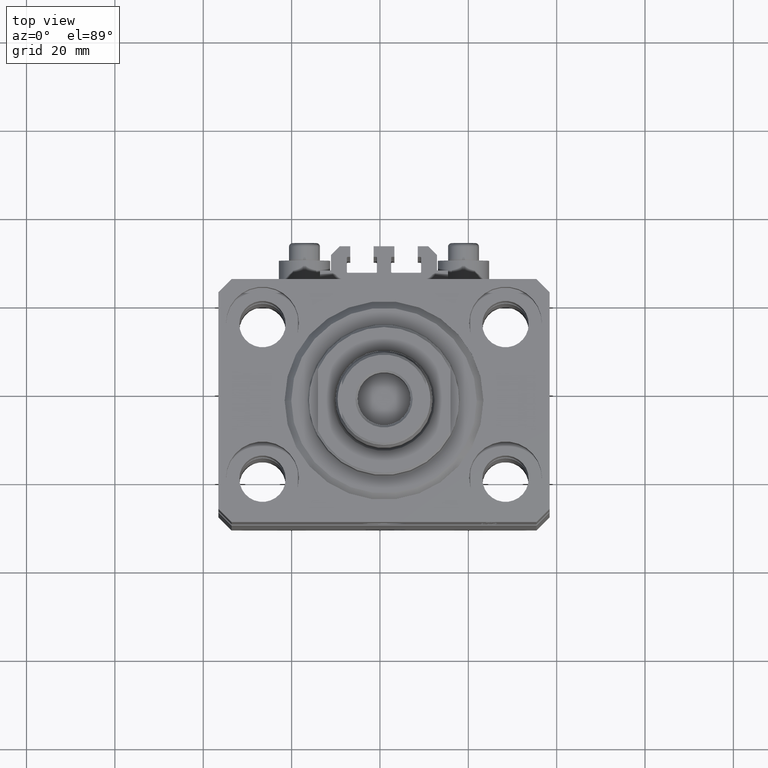
[diagram: clean part render]
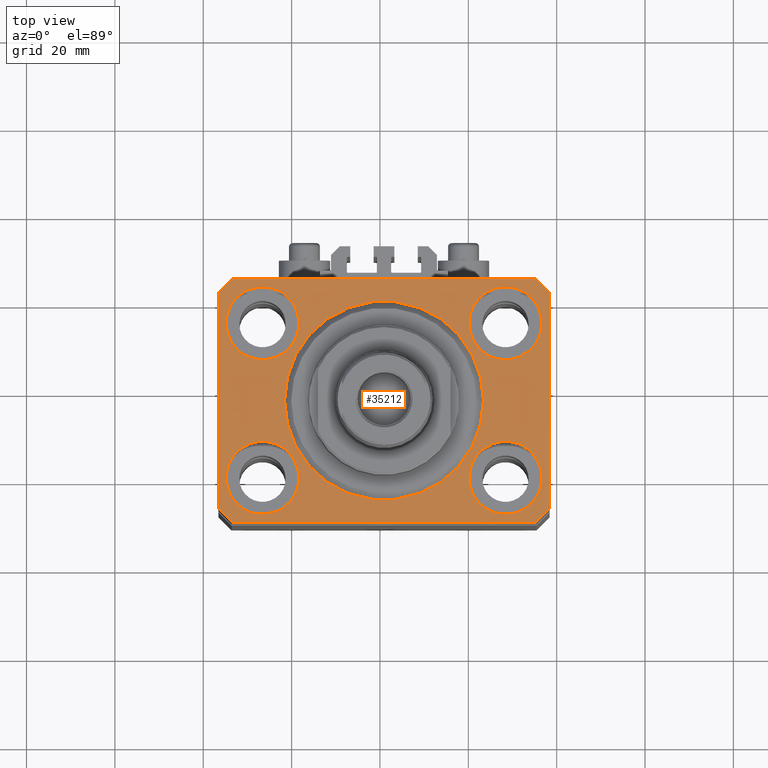
[diagram: same view with one face highlighted and labeled with its STEP entity id]
A machine part, top view. The second image highlights one B-rep face of the part: STEP entity #35212.
In plain terms, the highlighted planar face has unit normal (0, 0, 1).
Its self-contained STEP definition (entity closure, byte-faithful):
#198 = ORIENTED_EDGE ( 'NONE', *, *, #37226, .F. ) ;
#315 = VECTOR ( 'NONE', #17482, 1000.000000000000114 ) ;
#323 = CARTESIAN_POINT ( 'NONE',  ( 27.49999999999999645, 17.50000000000001066, 0.000000000000000000 ) ) ;
#507 = CARTESIAN_POINT ( 'NONE',  ( 22.50000000000000355, 0.000000000000000000, 0.000000000000000000 ) ) ;
#665 = DIRECTION ( 'NONE',  ( 1.076236605503979380E-14, 1.000000000000000000, 0.000000000000000000 ) ) ;
#895 = DIRECTION ( 'NONE',  ( 1.000000000000000000, 0.000000000000000000, 0.000000000000000000 ) ) ;
#1052 = CIRCLE ( 'NONE', #16933, 8.250000000000000000 ) ;
#1566 = DIRECTION ( 'NONE',  ( 0.7071067811865474617, 0.7071067811865474617, 0.000000000000000000 ) ) ;
#1796 = AXIS2_PLACEMENT_3D ( 'NONE', #19717, #17109, #16636 ) ;
#1897 = VERTEX_POINT ( 'NONE', #11271 ) ;
#2024 = FACE_BOUND ( 'NONE', #8508, .T. ) ;
#2130 = AXIS2_PLACEMENT_3D ( 'NONE', #27139, #44904, #895 ) ;
#2311 = CIRCLE ( 'NONE', #27238, 8.249999999999992895 ) ;
#2515 = ORIENTED_EDGE ( 'NONE', *, *, #8744, .F. ) ;
#2659 = CARTESIAN_POINT ( 'NONE',  ( 34.49999999999999289, -27.49999999999999645, 0.000000000000000000 ) ) ;
#2713 = VERTEX_POINT ( 'NONE', #2659 ) ;
#2960 = VECTOR ( 'NONE', #22339, 1000.000000000000000 ) ;
#3418 = EDGE_CURVE ( 'NONE', #14378, #40697, #36532, .T. ) ;
#3432 = DIRECTION ( 'NONE',  ( 0.000000000000000000, 0.000000000000000000, 1.000000000000000000 ) ) ;
#3671 = CARTESIAN_POINT ( 'NONE',  ( -34.49999999999999289, 27.50000000000000000, 0.000000000000000000 ) ) ;
#3987 = VERTEX_POINT ( 'NONE', #14424 ) ;
#4024 = VERTEX_POINT ( 'NONE', #43305 ) ;
#4112 = CARTESIAN_POINT ( 'NONE',  ( -37.49999999999999289, 24.50000000000000000, 0.000000000000000000 ) ) ;
#4177 = CARTESIAN_POINT ( 'NONE',  ( 19.25000000000000000, 17.50000000000001066, 0.000000000000000000 ) ) ;
#4279 = EDGE_LOOP ( 'NONE', ( #45364, #2515 ) ) ;
#4307 = ORIENTED_EDGE ( 'NONE', *, *, #40654, .T. ) ;
#5004 = EDGE_CURVE ( 'NONE', #2713, #16959, #19545, .T. ) ;
#5217 = EDGE_LOOP ( 'NONE', ( #37552, #13599 ) ) ;
#5242 = DIRECTION ( 'NONE',  ( 1.000000000000000000, 0.000000000000000000, 0.000000000000000000 ) ) ;
#5610 = VERTEX_POINT ( 'NONE', #43832 ) ;
#5695 = DIRECTION ( 'NONE',  ( 1.000000000000000000, 0.000000000000000000, 0.000000000000000000 ) ) ;
#6186 = CARTESIAN_POINT ( 'NONE',  ( 34.50000000000056843, 27.50000000000000000, 0.000000000000000000 ) ) ;
#6785 = DIRECTION ( 'NONE',  ( 1.000000000000000000, 0.000000000000000000, 0.000000000000000000 ) ) ;
#6955 = DIRECTION ( 'NONE',  ( 1.000000000000000000, 0.000000000000000000, 0.000000000000000000 ) ) ;
#6988 = CARTESIAN_POINT ( 'NONE',  ( -37.49999999999999289, -24.50000000000000000, 0.000000000000000000 ) ) ;
#7994 = LINE ( 'NONE', #15561, #14438 ) ;
#8508 = EDGE_LOOP ( 'NONE', ( #30622, #13857 ) ) ;
#8586 = ORIENTED_EDGE ( 'NONE', *, *, #30960, .F. ) ;
#8744 = EDGE_CURVE ( 'NONE', #38831, #28943, #45192, .T. ) ;
#8876 = CIRCLE ( 'NONE', #39134, 8.250000000000000000 ) ;
#8927 = VECTOR ( 'NONE', #45733, 1000.000000000000000 ) ;
#9950 = DIRECTION ( 'NONE',  ( 1.000000000000000000, 0.000000000000000000, 0.000000000000000000 ) ) ;
#9997 = EDGE_CURVE ( 'NONE', #38099, #5610, #34139, .T. ) ;
#10114 = AXIS2_PLACEMENT_3D ( 'NONE', #32868, #40452, #14659 ) ;
#10143 = VERTEX_POINT ( 'NONE', #507 ) ;
#10524 = FACE_BOUND ( 'NONE', #37621, .T. ) ;
#11245 = ORIENTED_EDGE ( 'NONE', *, *, #28855, .T. ) ;
#11271 = CARTESIAN_POINT ( 'NONE',  ( 19.25000000000000000, -17.50000000000000000, 0.000000000000000000 ) ) ;
#11967 = ORIENTED_EDGE ( 'NONE', *, *, #5004, .T. ) ;
#13599 = ORIENTED_EDGE ( 'NONE', *, *, #38529, .F. ) ;
#13610 = CARTESIAN_POINT ( 'NONE',  ( 35.75000000000000711, -17.50000000000000000, 0.000000000000000000 ) ) ;
#13857 = ORIENTED_EDGE ( 'NONE', *, *, #42904, .F. ) ;
#14221 = CIRCLE ( 'NONE', #2130, 22.50000000000000355 ) ;
#14268 = AXIS2_PLACEMENT_3D ( 'NONE', #17777, #46197, #17315 ) ;
#14378 = VERTEX_POINT ( 'NONE', #19091 ) ;
#14424 = CARTESIAN_POINT ( 'NONE',  ( -19.25000000000000355, 17.50000000000000000, 0.000000000000000000 ) ) ;
#14433 = CARTESIAN_POINT ( 'NONE',  ( -22.50000000000000355, 2.755455298081545172E-15, 0.000000000000000000 ) ) ;
#14438 = VECTOR ( 'NONE', #665, 1000.000000000000000 ) ;
#14439 = DIRECTION ( 'NONE',  ( 1.000000000000000000, 0.000000000000000000, 0.000000000000000000 ) ) ;
#14521 = ORIENTED_EDGE ( 'NONE', *, *, #15951, .F. ) ;
#14659 = DIRECTION ( 'NONE',  ( 1.000000000000000000, 0.000000000000000000, 0.000000000000000000 ) ) ;
#14849 = EDGE_CURVE ( 'NONE', #43639, #43970, #27858, .T. ) ;
#15561 = CARTESIAN_POINT ( 'NONE',  ( 37.49999999999999289, -24.50000000000000000, 0.000000000000000000 ) ) ;
#15951 = EDGE_CURVE ( 'NONE', #3987, #30362, #40756, .T. ) ;
#15975 = ORIENTED_EDGE ( 'NONE', *, *, #9997, .T. ) ;
#16636 = DIRECTION ( 'NONE',  ( 1.000000000000000000, 0.000000000000000000, 0.000000000000000000 ) ) ;
#16748 = DIRECTION ( 'NONE',  ( 1.000000000000000000, 0.000000000000000000, 0.000000000000000000 ) ) ;
#16933 = AXIS2_PLACEMENT_3D ( 'NONE', #22229, #25549, #14439 ) ;
#16959 = VERTEX_POINT ( 'NONE', #37144 ) ;
#17109 = DIRECTION ( 'NONE',  ( 0.000000000000000000, 0.000000000000000000, 1.000000000000000000 ) ) ;
#17315 = DIRECTION ( 'NONE',  ( 1.000000000000000000, 0.000000000000000000, 0.000000000000000000 ) ) ;
#17482 = DIRECTION ( 'NONE',  ( -0.7071067811865356934, 0.7071067811865594521, 0.000000000000000000 ) ) ;
#17777 = CARTESIAN_POINT ( 'NONE',  ( -27.50000000000000355, -17.50000000000000000, 0.000000000000000000 ) ) ;
#17907 = CARTESIAN_POINT ( 'NONE',  ( -37.49999999999999289, -24.50000000000000000, 0.000000000000000000 ) ) ;
#18302 = ORIENTED_EDGE ( 'NONE', *, *, #31119, .T. ) ;
#18411 = VECTOR ( 'NONE', #26577, 1000.000000000000000 ) ;
#18599 = DIRECTION ( 'NONE',  ( 0.7071067811865483499, -0.7071067811865466846, 0.000000000000000000 ) ) ;
#18665 = EDGE_CURVE ( 'NONE', #28943, #38831, #2311, .T. ) ;
#19091 = CARTESIAN_POINT ( 'NONE',  ( -37.49999999999999289, 24.50000000000000000, 0.000000000000000000 ) ) ;
#19364 = CARTESIAN_POINT ( 'NONE',  ( -19.25000000000000355, -17.50000000000000000, 0.000000000000000000 ) ) ;
#19542 = CARTESIAN_POINT ( 'NONE',  ( -35.75000000000000711, -17.50000000000000000, 0.000000000000000000 ) ) ;
#19545 = LINE ( 'NONE', #44880, #26835 ) ;
#19717 = CARTESIAN_POINT ( 'NONE',  ( 0.000000000000000000, 0.000000000000000000, 0.000000000000000000 ) ) ;
#20121 = EDGE_CURVE ( 'NONE', #16959, #4024, #7994, .T. ) ;
#21460 = CIRCLE ( 'NONE', #1796, 22.50000000000000355 ) ;
#21644 = LINE ( 'NONE', #3671, #2960 ) ;
#22229 = CARTESIAN_POINT ( 'NONE',  ( 27.50000000000000355, -17.50000000000000000, 0.000000000000000000 ) ) ;
#22339 = DIRECTION ( 'NONE',  ( -0.7071067811865471286, -0.7071067811865479058, 0.000000000000000000 ) ) ;
#24027 = AXIS2_PLACEMENT_3D ( 'NONE', #42999, #43460, #6785 ) ;
#24972 = ORIENTED_EDGE ( 'NONE', *, *, #27137, .F. ) ;
#25175 = VECTOR ( 'NONE', #18599, 1000.000000000000000 ) ;
#25549 = DIRECTION ( 'NONE',  ( 0.000000000000000000, 0.000000000000000000, 1.000000000000000000 ) ) ;
#26548 = EDGE_CURVE ( 'NONE', #10143, #44685, #21460, .T. ) ;
#26577 = DIRECTION ( 'NONE',  ( 0.000000000000000000, -1.000000000000000000, 0.000000000000000000 ) ) ;
#26793 = ORIENTED_EDGE ( 'NONE', *, *, #20121, .T. ) ;
#26835 = VECTOR ( 'NONE', #1566, 1000.000000000000114 ) ;
#27137 = EDGE_CURVE ( 'NONE', #1897, #44018, #30512, .T. ) ;
#27139 = CARTESIAN_POINT ( 'NONE',  ( 0.000000000000000000, 0.000000000000000000, 0.000000000000000000 ) ) ;
#27238 = AXIS2_PLACEMENT_3D ( 'NONE', #323, #43627, #6955 ) ;
#27858 = CIRCLE ( 'NONE', #14268, 8.250000000000000000 ) ;
#28855 = EDGE_CURVE ( 'NONE', #40697, #46585, #40374, .T. ) ;
#28943 = VERTEX_POINT ( 'NONE', #36358 ) ;
#29321 = CARTESIAN_POINT ( 'NONE',  ( -35.75000000000000711, 17.50000000000000000, 0.000000000000000000 ) ) ;
#30362 = VERTEX_POINT ( 'NONE', #29321 ) ;
#30512 = CIRCLE ( 'NONE', #10114, 8.250000000000000000 ) ;
#30622 = ORIENTED_EDGE ( 'NONE', *, *, #14849, .F. ) ;
#30775 = LINE ( 'NONE', #38117, #31484 ) ;
#30960 = EDGE_CURVE ( 'NONE', #44018, #1897, #1052, .T. ) ;
#31119 = EDGE_CURVE ( 'NONE', #4024, #38099, #34750, .T. ) ;
#31179 = CARTESIAN_POINT ( 'NONE',  ( -27.50000000000000355, -17.50000000000000000, 0.000000000000000000 ) ) ;
#31203 = CARTESIAN_POINT ( 'NONE',  ( 37.50000000000051870, 24.49999999999995381, 0.000000000000000000 ) ) ;
#31364 = PLANE ( 'NONE',  #43589 ) ;
#31484 = VECTOR ( 'NONE', #5695, 1000.000000000000000 ) ;
#31621 = AXIS2_PLACEMENT_3D ( 'NONE', #31179, #39230, #16748 ) ;
#32072 = DIRECTION ( 'NONE',  ( 1.000000000000000000, 0.000000000000000000, -0.000000000000000000 ) ) ;
#32868 = CARTESIAN_POINT ( 'NONE',  ( 27.50000000000000355, -17.50000000000000000, 0.000000000000000000 ) ) ;
#34139 = LINE ( 'NONE', #38159, #8927 ) ;
#34500 = EDGE_CURVE ( 'NONE', #46585, #2713, #30775, .T. ) ;
#34750 = LINE ( 'NONE', #31203, #315 ) ;
#34768 = ORIENTED_EDGE ( 'NONE', *, *, #3418, .T. ) ;
#35212 = ADVANCED_FACE ( 'NONE', ( #2024, #45340, #41788, #10524, #39410, #35392 ), #31364, .T. ) ;
#35392 = FACE_OUTER_BOUND ( 'NONE', #44742, .T. ) ;
#36358 = CARTESIAN_POINT ( 'NONE',  ( 35.74999999999999289, 17.50000000000001066, 0.000000000000000000 ) ) ;
#36532 = LINE ( 'NONE', #4112, #18411 ) ;
#36964 = AXIS2_PLACEMENT_3D ( 'NONE', #42392, #38596, #9950 ) ;
#37144 = CARTESIAN_POINT ( 'NONE',  ( 37.49999999999999289, -24.50000000000000000, 0.000000000000000000 ) ) ;
#37226 = EDGE_CURVE ( 'NONE', #30362, #3987, #8876, .T. ) ;
#37552 = ORIENTED_EDGE ( 'NONE', *, *, #26548, .F. ) ;
#37621 = EDGE_LOOP ( 'NONE', ( #14521, #198 ) ) ;
#37661 = CARTESIAN_POINT ( 'NONE',  ( -27.50000000000000355, 17.50000000000000000, 0.000000000000000000 ) ) ;
#38099 = VERTEX_POINT ( 'NONE', #6186 ) ;
#38117 = CARTESIAN_POINT ( 'NONE',  ( -34.49999999999998579, -27.49999999999999645, 0.000000000000000000 ) ) ;
#38159 = CARTESIAN_POINT ( 'NONE',  ( 34.50000000000056843, 27.50000000000000000, 0.000000000000000000 ) ) ;
#38529 = EDGE_CURVE ( 'NONE', #44685, #10143, #14221, .T. ) ;
#38596 = DIRECTION ( 'NONE',  ( 0.000000000000000000, 0.000000000000000000, 1.000000000000000000 ) ) ;
#38831 = VERTEX_POINT ( 'NONE', #4177 ) ;
#39134 = AXIS2_PLACEMENT_3D ( 'NONE', #37661, #41689, #5242 ) ;
#39178 = CARTESIAN_POINT ( 'NONE',  ( 0.000000000000000000, 0.000000000000000000, 0.000000000000000000 ) ) ;
#39230 = DIRECTION ( 'NONE',  ( 0.000000000000000000, 0.000000000000000000, 1.000000000000000000 ) ) ;
#39410 = FACE_BOUND ( 'NONE', #5217, .T. ) ;
#40374 = LINE ( 'NONE', #17907, #25175 ) ;
#40452 = DIRECTION ( 'NONE',  ( 0.000000000000000000, 0.000000000000000000, 1.000000000000000000 ) ) ;
#40654 = EDGE_CURVE ( 'NONE', #5610, #14378, #21644, .T. ) ;
#40697 = VERTEX_POINT ( 'NONE', #6988 ) ;
#40756 = CIRCLE ( 'NONE', #36964, 8.250000000000000000 ) ;
#41689 = DIRECTION ( 'NONE',  ( 0.000000000000000000, 0.000000000000000000, 1.000000000000000000 ) ) ;
#41788 = FACE_BOUND ( 'NONE', #4279, .T. ) ;
#42114 = EDGE_LOOP ( 'NONE', ( #8586, #24972 ) ) ;
#42392 = CARTESIAN_POINT ( 'NONE',  ( -27.50000000000000355, 17.50000000000000000, 0.000000000000000000 ) ) ;
#42904 = EDGE_CURVE ( 'NONE', #43970, #43639, #43720, .T. ) ;
#42999 = CARTESIAN_POINT ( 'NONE',  ( 27.49999999999999645, 17.50000000000001066, 0.000000000000000000 ) ) ;
#43305 = CARTESIAN_POINT ( 'NONE',  ( 37.50000000000051870, 24.49999999999995381, 0.000000000000000000 ) ) ;
#43460 = DIRECTION ( 'NONE',  ( 0.000000000000000000, 0.000000000000000000, 1.000000000000000000 ) ) ;
#43589 = AXIS2_PLACEMENT_3D ( 'NONE', #39178, #3432, #32072 ) ;
#43627 = DIRECTION ( 'NONE',  ( 0.000000000000000000, 0.000000000000000000, 1.000000000000000000 ) ) ;
#43639 = VERTEX_POINT ( 'NONE', #19364 ) ;
#43720 = CIRCLE ( 'NONE', #31621, 8.250000000000000000 ) ;
#43832 = CARTESIAN_POINT ( 'NONE',  ( -34.49999999999999289, 27.50000000000000000, 0.000000000000000000 ) ) ;
#43970 = VERTEX_POINT ( 'NONE', #19542 ) ;
#44018 = VERTEX_POINT ( 'NONE', #13610 ) ;
#44685 = VERTEX_POINT ( 'NONE', #14433 ) ;
#44742 = EDGE_LOOP ( 'NONE', ( #15975, #4307, #34768, #11245, #46836, #11967, #26793, #18302 ) ) ;
#44880 = CARTESIAN_POINT ( 'NONE',  ( 34.49999999999999289, -27.49999999999999645, 0.000000000000000000 ) ) ;
#44904 = DIRECTION ( 'NONE',  ( 0.000000000000000000, 0.000000000000000000, 1.000000000000000000 ) ) ;
#45192 = CIRCLE ( 'NONE', #24027, 8.249999999999992895 ) ;
#45340 = FACE_BOUND ( 'NONE', #42114, .T. ) ;
#45364 = ORIENTED_EDGE ( 'NONE', *, *, #18665, .F. ) ;
#45709 = CARTESIAN_POINT ( 'NONE',  ( -34.49999999999998579, -27.49999999999999645, 0.000000000000000000 ) ) ;
#45733 = DIRECTION ( 'NONE',  ( -1.000000000000000000, 0.000000000000000000, 0.000000000000000000 ) ) ;
#46197 = DIRECTION ( 'NONE',  ( 0.000000000000000000, 0.000000000000000000, 1.000000000000000000 ) ) ;
#46585 = VERTEX_POINT ( 'NONE', #45709 ) ;
#46836 = ORIENTED_EDGE ( 'NONE', *, *, #34500, .T. ) ;